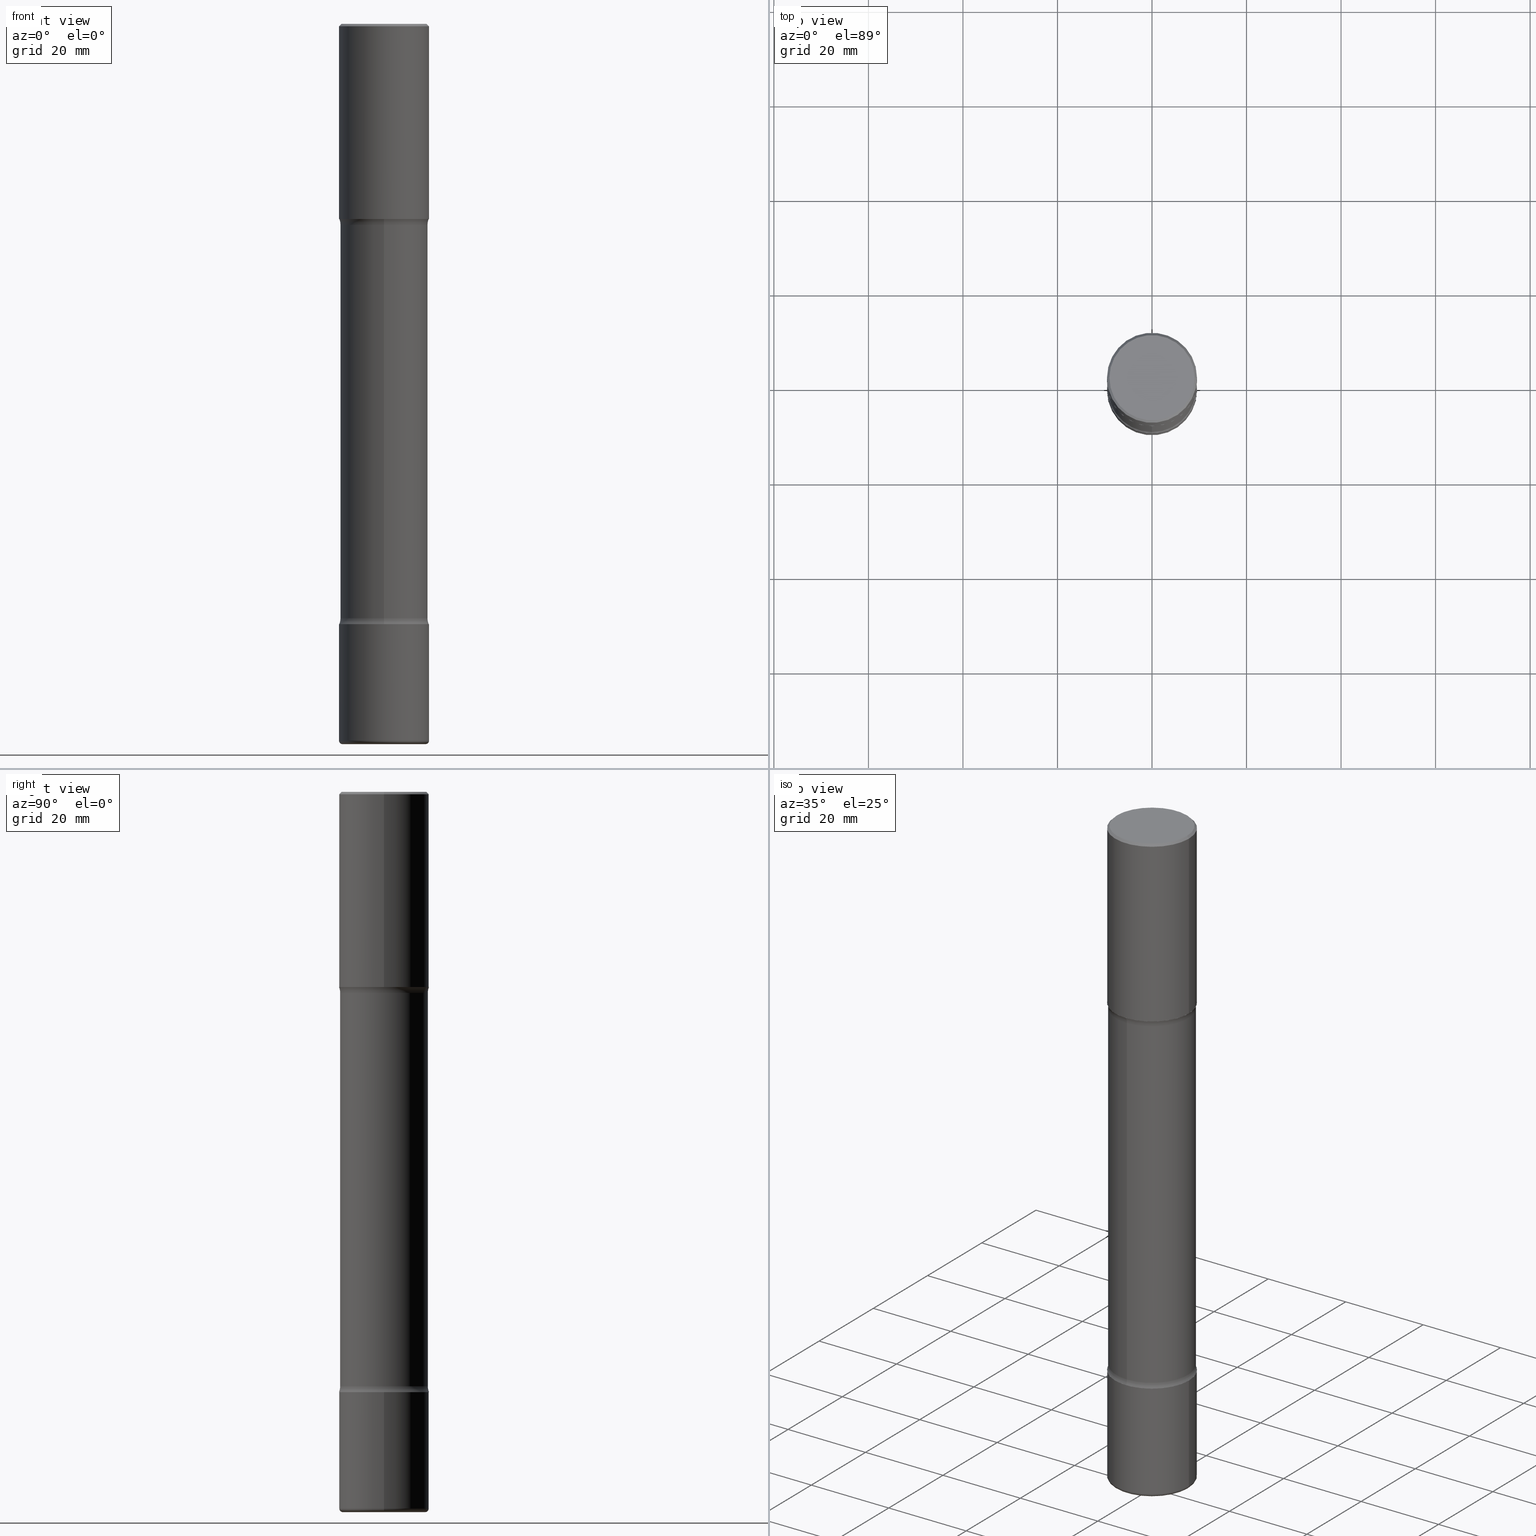
[diagram: canonical four-view strip — front | top / right | iso, engineering-drawing reading convention]
A machine part, canonical four-view strip (front | top / right | iso — engineering-drawing reading convention). The complete STEP part file that produces these views, byte-faithful:
ISO-10303-21;
HEADER;
FILE_DESCRIPTION (( 'STEP AP203' ),
    '1' );
FILE_NAME ('33522.STEP',
    '2024-03-01T22:44:41',
    ( '' ),
    ( '' ),
    'SwSTEP 2.0',
    'SolidWorks 2023',
    '' );
FILE_SCHEMA (( 'CONFIG_CONTROL_DESIGN' ));
ENDSEC;

DATA;
#1 = CARTESIAN_POINT ( 'NONE',  ( 3.473707066313519863E-29, -6.732554728093303521E-15, -1.673989794855664570 ) ) ;
#2 = EDGE_CURVE ( 'NONE', #208, #10, #236, .T. ) ;
#3 = DIRECTION ( 'NONE',  ( 1.000000000000000000, -6.982962677686215435E-15, 0.000000000000000000 ) ) ;
#4 = EDGE_LOOP ( 'NONE', ( #105, #232, #440, #539 ) ) ;
#5 = ORIENTED_EDGE ( 'NONE', *, *, #60, .T. ) ;
#6 = CIRCLE ( 'NONE', #134, 0.3750000000000011102 ) ;
#7 = DIRECTION ( 'NONE',  ( -2.445468806185136597E-29, 3.491481338843145583E-15, 1.000000000000000000 ) ) ;
#8 = APPROVAL_PERSON_ORGANIZATION ( #186, #35, #272 ) ;
#9 = CARTESIAN_POINT ( 'NONE',  ( 1.210754101578474788E-28, -1.728635973968342417E-14, -4.951010205144336318 ) ) ;
#10 = VERTEX_POINT ( 'NONE', #395 ) ;
#11 = ADVANCED_FACE ( 'NONE', ( #13 ), #453, .F. ) ;
#12 = APPLICATION_PROTOCOL_DEFINITION ( 'international standard', 'config_control_design', 1994, #328 ) ;
#13 = FACE_OUTER_BOUND ( 'NONE', #483, .T. ) ;
#14 = CARTESIAN_POINT ( 'NONE',  ( -2.572686749164297515E-15, -0.3750000000000077716, -1.624999999999998668 ) ) ;
#15 = DIRECTION ( 'NONE',  ( 6.982962677686265922E-15, 1.000000000000000000, -2.913971193241872089E-15 ) ) ;
#16 = TOROIDAL_SURFACE ( 'NONE', #436, 0.3450000000000001954, 0.03000000000000022787 ) ;
#17 = AXIS2_PLACEMENT_3D ( 'NONE', #535, #55, #146 ) ;
#18 = ORIENTED_EDGE ( 'NONE', *, *, #451, .T. ) ;
#19 = ORIENTED_EDGE ( 'NONE', *, *, #460, .T. ) ;
#20 = CARTESIAN_POINT ( 'NONE',  ( 1.210754101578474788E-28, -1.728635973968342417E-14, -4.951010205144336318 ) ) ;
#21 = EDGE_CURVE ( 'NONE', #446, #10, #368, .T. ) ;
#22 = DIRECTION ( 'NONE',  ( -2.445468806185136597E-29, 3.491481338843145583E-15, 1.000000000000000000 ) ) ;
#23 = ADVANCED_FACE ( 'NONE', ( #187 ), #445, .T. ) ;
#24 = DIRECTION ( 'NONE',  ( 1.000000000000000000, -6.982962677686265133E-15, 4.883557194083112340E-29 ) ) ;
#25 = ORIENTED_EDGE ( 'NONE', *, *, #45, .T. ) ;
#26 = AXIS2_PLACEMENT_3D ( 'NONE', #415, #72, #245 ) ;
#27 = AXIS2_PLACEMENT_3D ( 'NONE', #441, #355, #523 ) ;
#28 = CARTESIAN_POINT ( 'NONE',  ( 0.000000000000000000, 0.000000000000000000, 0.000000000000000000 ) ) ;
#29 = EDGE_CURVE ( 'NONE', #267, #145, #148, .T. ) ;
#30 = DIRECTION ( 'NONE',  ( 1.000000000000000000, -6.982962677686266711E-15, 0.000000000000000000 ) ) ;
#31 = CLOSED_SHELL ( 'NONE', ( #23, #351, #122, #513, #549, #166 ) ) ;
#32 = ORIENTED_EDGE ( 'NONE', *, *, #91, .T. ) ;
#33 = CIRCLE ( 'NONE', #344, 0.3650000000000004907 ) ;
#34 = CIRCLE ( 'NONE', #412, 0.1250000000000001110 ) ;
#35 = APPROVAL ( #530, 'UNSPECIFIED' ) ;
#36 = CARTESIAN_POINT ( 'NONE',  ( 1.459944877292526494E-28, -2.084414359289357934E-14, -5.969999999999999751 ) ) ;
#37 = VERTEX_POINT ( 'NONE', #363 ) ;
#38 = DIRECTION ( 'NONE',  ( -2.636232731993832402E-29, 3.218296539476719458E-15, 1.000000000000000000 ) ) ;
#39 = ORGANIZATION ( 'UNSPECIFIED', 'UNSPECIFIED', '' ) ;
#40 = CARTESIAN_POINT ( 'NONE',  ( -0.3750000000000002220, 2.664535259100377275E-15, -1.844600658845590719E-29 ) ) ;
#41 = ORIENTED_EDGE ( 'NONE', *, *, #2, .T. ) ;
#42 = LINE ( 'NONE', #79, #338 ) ;
#43 = EDGE_LOOP ( 'NONE', ( #480, #234 ) ) ;
#44 = DIRECTION ( 'NONE',  ( 6.982962677686265922E-15, 1.000000000000000000, -2.993806020453985462E-15 ) ) ;
#45 = EDGE_CURVE ( 'NONE', #286, #310, #140, .T. ) ;
#46 = CIRCLE ( 'NONE', #126, 0.3750000000000007772 ) ;
#47 = CARTESIAN_POINT ( 'NONE',  ( 0.000000000000000000, 0.000000000000000000, 0.000000000000000000 ) ) ;
#48 = AXIS2_PLACEMENT_3D ( 'NONE', #471, #517, #170 ) ;
#49 = ORIENTED_EDGE ( 'NONE', *, *, #269, .F. ) ;
#50 =( CONVERSION_BASED_UNIT ( 'INCH', #309 ) LENGTH_UNIT ( ) NAMED_UNIT ( #519 ) );
#51 = DIRECTION ( 'NONE',  ( 2.636232731993832963E-29, -3.218296539476719458E-15, -1.000000000000000000 ) ) ;
#52 = ORIENTED_EDGE ( 'NONE', *, *, #425, .F. ) ;
#53 = CYLINDRICAL_SURFACE ( 'NONE', #521, 0.3650000000000002132 ) ;
#54 = EDGE_LOOP ( 'NONE', ( #302, #538 ) ) ;
#55 = DIRECTION ( 'NONE',  ( -2.445468806185136597E-29, 3.491481338843145583E-15, 1.000000000000000000 ) ) ;
#56 = DIRECTION ( 'NONE',  ( -1.000000000000000000, 6.982962677686266711E-15, 0.000000000000000000 ) ) ;
#57 = EDGE_LOOP ( 'NONE', ( #212, #5, #185, #158 ) ) ;
#58 = AXIS2_PLACEMENT_3D ( 'NONE', #553, #67, #295 ) ;
#59 = AXIS2_PLACEMENT_3D ( 'NONE', #36, #555, #87 ) ;
#60 = EDGE_CURVE ( 'NONE', #316, #250, #191, .T. ) ;
#61 = ORIENTED_EDGE ( 'NONE', *, *, #312, .F. ) ;
#62 = APPROVAL_ROLE ( '' ) ;
#63 = FACE_OUTER_BOUND ( 'NONE', #509, .T. ) ;
#64 = PERSON_AND_ORGANIZATION_ROLE ( 'design_supplier' ) ;
#65 = FACE_OUTER_BOUND ( 'NONE', #401, .T. ) ;
#66 = EDGE_CURVE ( 'NONE', #310, #463, #348, .T. ) ;
#67 = DIRECTION ( 'NONE',  ( -2.445468806185136597E-29, 3.491481338843145583E-15, 1.000000000000000000 ) ) ;
#68 = CIRCLE ( 'NONE', #410, 0.3649999999999999356 ) ;
#69 = DATE_AND_TIME ( #486, #437 ) ;
#70 = FACE_OUTER_BOUND ( 'NONE', #214, .T. ) ;
#71 = APPROVAL_DATE_TIME ( #278, #188 ) ;
#72 = DIRECTION ( 'NONE',  ( -1.000000000000000000, 6.982962677686265922E-15, -4.883557194083112340E-29 ) ) ;
#73 = EDGE_LOOP ( 'NONE', ( #92, #120, #493, #406 ) ) ;
#74 = DIRECTION ( 'NONE',  ( 2.636232731993832963E-29, -3.218296539476719458E-15, -1.000000000000000000 ) ) ;
#75 = ORIENTED_EDGE ( 'NONE', *, *, #451, .F. ) ;
#76 = AXIS2_PLACEMENT_3D ( 'NONE', #28, #452, #205 ) ;
#77 = CIRCLE ( 'NONE', #59, 0.3750000000000001665 ) ;
#78 = PRODUCT_DEFINITION_SHAPE ( 'NONE', 'NONE',  #431 ) ;
#79 = CARTESIAN_POINT ( 'NONE',  ( 0.3750000000000008327, -2.618611004132355933E-15, 1.828566290923479846E-29 ) ) ;
#80 = DIRECTION ( 'NONE',  ( -2.445468806185136597E-29, 3.491481338843145583E-15, 1.000000000000000000 ) ) ;
#81 = PLANE ( 'NONE',  #448 ) ;
#82 = PRODUCT_RELATED_PRODUCT_CATEGORY ( 'detail', '', ( #467 ) ) ;
#83 = EDGE_CURVE ( 'NONE', #544, #446, #117, .T. ) ;
#84 = AXIS2_PLACEMENT_3D ( 'NONE', #20, #151, #90 ) ;
#85 = EDGE_LOOP ( 'NONE', ( #75, #61, #275, #527 ) ) ;
#86 = CIRCLE ( 'NONE', #246, 0.1249999999999999584 ) ;
#87 = DIRECTION ( 'NONE',  ( 1.000000000000000000, -6.982962677686269866E-15, 0.000000000000000000 ) ) ;
#88 = EDGE_LOOP ( 'NONE', ( #554, #268, #370, #550 ) ) ;
#89 = ORIENTED_EDGE ( 'NONE', *, *, #520, .F. ) ;
#90 = DIRECTION ( 'NONE',  ( 6.982962677686265922E-15, 1.000000000000000000, -3.218296539476719458E-15 ) ) ;
#91 = EDGE_CURVE ( 'NONE', #534, #319, #6, .T. ) ;
#92 = ORIENTED_EDGE ( 'NONE', *, *, #29, .F. ) ;
#93 = DIRECTION ( 'NONE',  ( 1.000000000000000000, 0.000000000000000000, 0.000000000000000000 ) ) ;
#94 = CARTESIAN_POINT ( 'NONE',  ( 1.222734403092568523E-28, -1.745740669421572989E-14, -5.000000000000000000 ) ) ;
#95 = ORIENTED_EDGE ( 'NONE', *, *, #425, .T. ) ;
#96 = CARTESIAN_POINT ( 'NONE',  ( 3.973886810050846409E-29, -5.673657175620110635E-15, -1.624999999999999778 ) ) ;
#97 = CIRCLE ( 'NONE', #244, 0.3650000000000004907 ) ;
#98 = AXIS2_PLACEMENT_3D ( 'NONE', #154, #416, #459 ) ;
#99 = CARTESIAN_POINT ( 'NONE',  ( -2.572686749164203246E-15, -0.3750000000000175970, -4.999999999999999112 ) ) ;
#100 = CIRCLE ( 'NONE', #522, 0.3750000000000002220 ) ;
#101 = CARTESIAN_POINT ( 'NONE',  ( 4.890937612370273159E-31, -6.982962677686291609E-17, -0.02000000000000000042 ) ) ;
#102 = ORIENTED_EDGE ( 'NONE', *, *, #326, .T. ) ;
#103 = DIRECTION ( 'NONE',  ( -2.445468806185136597E-29, 3.491481338843145583E-15, 1.000000000000000000 ) ) ;
#104 = EDGE_CURVE ( 'NONE', #463, #310, #357, .T. ) ;
#105 = ORIENTED_EDGE ( 'NONE', *, *, #468, .F. ) ;
#106 = CALENDAR_DATE ( 2024, 1, 3 ) ;
#107 = CARTESIAN_POINT ( 'NONE',  ( 3.973886810050846409E-29, -5.673657175620110635E-15, -1.624999999999999778 ) ) ;
#108 = ORIENTED_EDGE ( 'NONE', *, *, #460, .F. ) ;
#109 = CIRCLE ( 'NONE', #58, 0.3450000000000003064 ) ;
#110 = LOCAL_TIME ( 17, 44, 41.00000000000000000, #115 ) ;
#111 = CARTESIAN_POINT ( 'NONE',  ( 4.890937612370273159E-31, -6.982962677686291609E-17, -0.02000000000000000042 ) ) ;
#112 = ADVANCED_FACE ( 'NONE', ( #350 ), #318, .F. ) ;
#113 = CALENDAR_DATE ( 2024, 1, 3 ) ;
#114 = DIRECTION ( 'NONE',  ( 6.982962677686265922E-15, 1.000000000000000000, -2.993806020453987435E-15 ) ) ;
#115 = COORDINATED_UNIVERSAL_TIME_OFFSET ( 5, 0, .BEHIND. ) ;
#116 = DIRECTION ( 'NONE',  ( 2.636232731993832963E-29, -3.218296539476719458E-15, -1.000000000000000000 ) ) ;
#117 = CIRCLE ( 'NONE', #428, 0.1250000000000001110 ) ;
#118 = SECURITY_CLASSIFICATION ( '', '', #324 ) ;
#119 = PERSON_AND_ORGANIZATION ( #524, #39 ) ;
#120 = ORIENTED_EDGE ( 'NONE', *, *, #125, .F. ) ;
#121 = DIRECTION ( 'NONE',  ( 6.982962677686266711E-15, 1.000000000000000000, -2.913971193241879189E-15 ) ) ;
#122 = ADVANCED_FACE ( 'NONE', ( #479 ), #551, .T. ) ;
#123 = VERTEX_POINT ( 'NONE', #99 ) ;
#124 = DIRECTION ( 'NONE',  ( -1.000000000000000000, 6.982962677686266711E-15, 0.000000000000000000 ) ) ;
#125 = EDGE_CURVE ( 'NONE', #153, #267, #252, .T. ) ;
#126 = AXIS2_PLACEMENT_3D ( 'NONE', #456, #507, #30 ) ;
#127 = APPROVAL_PERSON_ORGANIZATION ( #119, #485, #62 ) ;
#128 = LINE ( 'NONE', #304, #142 ) ;
#129 = MANIFOLD_SOLID_BREP ( 'Body-Move/Copy2[2]', #31 ) ;
#130 = ADVANCED_FACE ( 'NONE', ( #435 ), #218, .F. ) ;
#131 = CARTESIAN_POINT ( 'NONE',  ( 1.467281283711081958E-28, -2.094888803305887271E-14, -6.000000000000000888 ) ) ;
#132 = ADVANCED_FACE ( 'NONE', ( #266 ), #53, .T. ) ;
#133 = DIRECTION ( 'NONE',  ( 6.982962677686266711E-15, 1.000000000000000000, -2.993806020453983096E-15 ) ) ;
#134 = AXIS2_PLACEMENT_3D ( 'NONE', #405, #51, #15 ) ;
#135 = CIRCLE ( 'NONE', #558, 0.3750000000000002220 ) ;
#136 = CYLINDRICAL_SURFACE ( 'NONE', #482, 0.3650000000000002132 ) ;
#137 = EDGE_CURVE ( 'NONE', #10, #446, #68, .T. ) ;
#138 = DIRECTION ( 'NONE',  ( 1.000000000000000000, -6.982962677686266711E-15, 4.876176775795935793E-29 ) ) ;
#139 = CARTESIAN_POINT ( 'NONE',  ( 0.3750000000000002220, -2.618611004132351594E-15, 1.828566290923477043E-29 ) ) ;
#140 = LINE ( 'NONE', #139, #503 ) ;
#141 = COORDINATED_UNIVERSAL_TIME_OFFSET ( 5, 0, .BEHIND. ) ;
#142 = VECTOR ( 'NONE', #380, 39.37007874015748143 ) ;
#143 =( GEOMETRIC_REPRESENTATION_CONTEXT ( 3 ) GLOBAL_UNCERTAINTY_ASSIGNED_CONTEXT ( ( #265 ) ) GLOBAL_UNIT_ASSIGNED_CONTEXT ( ( #50, #235, #474 ) ) REPRESENTATION_CONTEXT ( 'NONE', 'WORKASPACE' ) );
#144 = DIRECTION ( 'NONE',  ( -6.982962677686264344E-15, -1.000000000000000000, 0.000000000000000000 ) ) ;
#145 = VERTEX_POINT ( 'NONE', #450 ) ;
#146 = DIRECTION ( 'NONE',  ( 1.000000000000000000, -6.982962677686265922E-15, 0.000000000000000000 ) ) ;
#147 = EDGE_CURVE ( 'NONE', #208, #206, #33, .T. ) ;
#148 = LINE ( 'NONE', #526, #162 ) ;
#149 = VERTEX_POINT ( 'NONE', #501 ) ;
#150 = COORDINATED_UNIVERSAL_TIME_OFFSET ( 5, 0, .BEHIND. ) ;
#151 = DIRECTION ( 'NONE',  ( 2.636232731993832963E-29, -3.218296539476719458E-15, -1.000000000000000000 ) ) ;
#152 = DATE_AND_TIME ( #540, #110 ) ;
#153 = VERTEX_POINT ( 'NONE', #407 ) ;
#154 = CARTESIAN_POINT ( 'NONE',  ( 1.467281283711081958E-28, -2.094888803305887271E-14, -6.000000000000000888 ) ) ;
#155 = CIRCLE ( 'NONE', #496, 0.3550000000000008149 ) ;
#156 = ADVANCED_FACE ( 'NONE', ( #209 ), #16, .T. ) ;
#157 = DIRECTION ( 'NONE',  ( -2.445468806185136597E-29, 3.491481338843145583E-15, 1.000000000000000000 ) ) ;
#158 = ORIENTED_EDGE ( 'NONE', *, *, #326, .F. ) ;
#159 = APPROVAL_STATUS ( 'not_yet_approved' ) ;
#160 = DIRECTION ( 'NONE',  ( -2.445468806185136597E-29, 3.491481338843145583E-15, 1.000000000000000000 ) ) ;
#161 = CARTESIAN_POINT ( 'NONE',  ( 0.3550000000000008149, -2.538996582575045781E-15, 4.268512490117958041E-18 ) ) ;
#162 = VECTOR ( 'NONE', #391, 39.37007874015748143 ) ;
#163 = CONICAL_SURFACE ( 'NONE', #533, 0.3750000000000007772, 0.7853981633974479459 ) ;
#164 = ORIENTED_EDGE ( 'NONE', *, *, #60, .F. ) ;
#165 = ORIENTED_EDGE ( 'NONE', *, *, #147, .T. ) ;
#166 = ADVANCED_FACE ( 'NONE', ( #70 ), #248, .T. ) ;
#167 = FACE_OUTER_BOUND ( 'NONE', #221, .T. ) ;
#168 = ORIENTED_EDGE ( 'NONE', *, *, #147, .F. ) ;
#169 = DIRECTION ( 'NONE',  ( -2.445468806185136597E-29, 3.491481338843145583E-15, 1.000000000000000000 ) ) ;
#170 = DIRECTION ( 'NONE',  ( 6.982962677686265922E-15, 1.000000000000000000, -3.218296539476719458E-15 ) ) ;
#171 = EDGE_CURVE ( 'NONE', #316, #37, #109, .T. ) ;
#172 = AXIS2_PLACEMENT_3D ( 'NONE', #314, #399, #195 ) ;
#173 = VECTOR ( 'NONE', #559, 39.37007874015748143 ) ;
#174 = CARTESIAN_POINT ( 'NONE',  ( -0.3750000000000002220, -1.648623988445427734E-14, -5.000000000000000000 ) ) ;
#175 = CARTESIAN_POINT ( 'NONE',  ( 3.973886810050846409E-29, -5.673657175620110635E-15, -1.624999999999999778 ) ) ;
#176 = FACE_OUTER_BOUND ( 'NONE', #320, .T. ) ;
#177 = APPLICATION_CONTEXT ( 'configuration controlled 3d designs of mechanical parts and assemblies' ) ;
#178 = CIRCLE ( 'NONE', #26, 0.1249999999999999584 ) ;
#179 = DIRECTION ( 'NONE',  ( 1.000000000000000000, -6.860497997771530774E-15, 4.844144428525341329E-29 ) ) ;
#180 = DIRECTION ( 'NONE',  ( -2.445468806185136877E-29, 3.491481338843145188E-15, 1.000000000000000000 ) ) ;
#181 = ORIENTED_EDGE ( 'NONE', *, *, #192, .F. ) ;
#182 = DIRECTION ( 'NONE',  ( -2.438088387897960049E-29, 3.491481338843145188E-15, 1.000000000000000000 ) ) ;
#183 = DIRECTION ( 'NONE',  ( 6.982962677686265922E-15, 1.000000000000000000, -3.218296539476719458E-15 ) ) ;
#184 = ORIENTED_EDGE ( 'NONE', *, *, #91, .F. ) ;
#185 = ORIENTED_EDGE ( 'NONE', *, *, #371, .F. ) ;
#186 = PERSON_AND_ORGANIZATION ( #524, #39 ) ;
#187 = FACE_OUTER_BOUND ( 'NONE', #263, .T. ) ;
#188 = APPROVAL ( #159, 'UNSPECIFIED' ) ;
#189 = CLOSED_SHELL ( 'NONE', ( #198, #156, #254, #216, #556, #112 ) ) ;
#190 = CARTESIAN_POINT ( 'NONE',  ( 2.618611004132472684E-15, 0.3749999999999826805, -5.000000000000000888 ) ) ;
#191 = CIRCLE ( 'NONE', #225, 0.03000000000000022787 ) ;
#192 = EDGE_CURVE ( 'NONE', #206, #319, #178, .T. ) ;
#193 = DIRECTION ( 'NONE',  ( 1.000000000000000000, -6.982962677686263555E-15, 0.000000000000000000 ) ) ;
#194 = DATE_AND_TIME ( #113, #473 ) ;
#195 = DIRECTION ( 'NONE',  ( 6.982962677686265922E-15, 1.000000000000000000, -2.993806020453987435E-15 ) ) ;
#196 = ORIENTED_EDGE ( 'NONE', *, *, #2, .F. ) ;
#197 = PERSON_AND_ORGANIZATION ( #524, #39 ) ;
#198 = ADVANCED_FACE ( 'NONE', ( #167 ), #413, .T. ) ;
#199 = DIRECTION ( 'NONE',  ( 1.000000000000000000, -6.982962677686266711E-15, 0.000000000000000000 ) ) ;
#200 = ADVANCED_BREP_SHAPE_REPRESENTATION ( '33522', ( #502, #129, #313, #259 ), #143 ) ;
#201 = APPROVAL_STATUS ( 'not_yet_approved' ) ;
#202 = CARTESIAN_POINT ( 'NONE',  ( 3.330058560446495684E-29, -6.595655873481799644E-15, -1.624999999999999778 ) ) ;
#203 = TOROIDAL_SURFACE ( 'NONE', #514, 0.4900000000000004907, 0.1249999999999999861 ) ;
#204 = CC_DESIGN_APPROVAL ( #188, ( #118 ) ) ;
#205 = DIRECTION ( 'NONE',  ( 1.000000000000000000, -6.982962677686266711E-15, 4.876176775795935793E-29 ) ) ;
#206 = VERTEX_POINT ( 'NONE', #546 ) ;
#207 = CARTESIAN_POINT ( 'NONE',  ( 1.459944877292526494E-28, -2.084414359289357934E-14, -5.969999999999999751 ) ) ;
#208 = VERTEX_POINT ( 'NONE', #241 ) ;
#209 = FACE_OUTER_BOUND ( 'NONE', #57, .T. ) ;
#210 = AXIS2_PLACEMENT_3D ( 'NONE', #537, #273, #238 ) ;
#211 = VECTOR ( 'NONE', #220, 39.37007874015748143 ) ;
#212 = ORIENTED_EDGE ( 'NONE', *, *, #389, .T. ) ;
#213 = DIRECTION ( 'NONE',  ( 1.000000000000000000, -6.860497997771530774E-15, 4.844144428525341329E-29 ) ) ;
#214 = EDGE_LOOP ( 'NONE', ( #457, #418, #299, #484 ) ) ;
#215 = CARTESIAN_POINT ( 'NONE',  ( -0.3450000000000003064, -1.833856196423986308E-14, -6.000000000000000888 ) ) ;
#216 = ADVANCED_FACE ( 'NONE', ( #63 ), #481, .T. ) ;
#217 = LINE ( 'NONE', #40, #211 ) ;
#218 = TOROIDAL_SURFACE ( 'NONE', #84, 0.4900000000000001021, 0.1250000000000000555 ) ;
#219 = CARTESIAN_POINT ( 'NONE',  ( 1.459944877292526494E-28, -2.084414359289357934E-14, -5.969999999999999751 ) ) ;
#220 = DIRECTION ( 'NONE',  ( -2.445468806185136877E-29, 3.491481338843145188E-15, 1.000000000000000000 ) ) ;
#221 = EDGE_LOOP ( 'NONE', ( #226, #95, #388, #529 ) ) ;
#222 = CC_DESIGN_PERSON_AND_ORGANIZATION_ASSIGNMENT ( #365, #497, ( #118 ) ) ;
#223 = CARTESIAN_POINT ( 'NONE',  ( 0.000000000000000000, 0.000000000000000000, 0.000000000000000000 ) ) ;
#224 = CARTESIAN_POINT ( 'NONE',  ( 1.209819553019351831E-28, -1.729974300696207142E-14, -4.951010205144336318 ) ) ;
#225 = AXIS2_PLACEMENT_3D ( 'NONE', #439, #271, #356 ) ;
#226 = ORIENTED_EDGE ( 'NONE', *, *, #371, .T. ) ;
#227 = AXIS2_PLACEMENT_3D ( 'NONE', #96, #182, #270 ) ;
#228 = CYLINDRICAL_SURFACE ( 'NONE', #293, 0.3750000000000002220 ) ;
#229 = DIRECTION ( 'NONE',  ( 1.000000000000000000, -6.982962677686263555E-15, 0.000000000000000000 ) ) ;
#230 = DIRECTION ( 'NONE',  ( 6.860497997771527618E-15, 1.000000000000000000, 0.000000000000000000 ) ) ;
#231 = DIRECTION ( 'NONE',  ( 1.000000000000000000, -6.982962677686266711E-15, 4.876176775795935232E-29 ) ) ;
#232 = ORIENTED_EDGE ( 'NONE', *, *, #29, .T. ) ;
#233 = EDGE_CURVE ( 'NONE', #364, #145, #329, .T. ) ;
#234 = ORIENTED_EDGE ( 'NONE', *, *, #494, .T. ) ;
#235 =( NAMED_UNIT ( * ) PLANE_ANGLE_UNIT ( ) SI_UNIT ( $, .RADIAN. ) );
#236 = LINE ( 'NONE', #397, #375 ) ;
#237 = DIRECTION ( 'NONE',  ( 2.636232731993832963E-29, -3.218296539476719458E-15, -1.000000000000000000 ) ) ;
#238 = DIRECTION ( 'NONE',  ( 1.000000000000000000, -6.982962677686265922E-15, 4.876231632511976973E-29 ) ) ;
#239 = ORIENTED_EDGE ( 'NONE', *, *, #312, .T. ) ;
#240 = ADVANCED_FACE ( 'NONE', ( #376 ), #409, .F. ) ;
#241 = CARTESIAN_POINT ( 'NONE',  ( -2.538384259175437285E-15, -0.3650000000000072631, -1.673989794855663460 ) ) ;
#242 = CARTESIAN_POINT ( 'NONE',  ( -0.3750000000000002776, -1.817960833379319733E-14, -5.969999999999999751 ) ) ;
#243 = ORIENTED_EDGE ( 'NONE', *, *, #298, .F. ) ;
#244 = AXIS2_PLACEMENT_3D ( 'NONE', #387, #469, #133 ) ;
#245 = DIRECTION ( 'NONE',  ( -6.982962677686265133E-15, -1.000000000000000000, 0.000000000000000000 ) ) ;
#246 = AXIS2_PLACEMENT_3D ( 'NONE', #251, #213, #379 ) ;
#247 = DATE_TIME_ROLE ( 'classification_date' ) ;
#248 = CYLINDRICAL_SURFACE ( 'NONE', #420, 0.3750000000000008327 ) ;
#249 = DIRECTION ( 'NONE',  ( 2.636232731993832402E-29, -3.218296539476719458E-15, -1.000000000000000000 ) ) ;
#250 = VERTEX_POINT ( 'NONE', #242 ) ;
#251 = CARTESIAN_POINT ( 'NONE',  ( -3.361644018908018501E-15, -0.4900000000000072631, -1.673989794855663016 ) ) ;
#252 = CIRCLE ( 'NONE', #210, 0.3550000000000008149 ) ;
#253 = ORIENTED_EDGE ( 'NONE', *, *, #171, .F. ) ;
#254 = ADVANCED_FACE ( 'NONE', ( #65 ), #542, .T. ) ;
#255 = CARTESIAN_POINT ( 'NONE',  ( 2.618611004132391432E-15, 0.3749999999999945044, -1.625000000000000888 ) ) ;
#256 = FACE_OUTER_BOUND ( 'NONE', #4, .T. ) ;
#257 = DIRECTION ( 'NONE',  ( -6.982962677686265922E-15, -1.000000000000000000, 3.218296539476719458E-15 ) ) ;
#258 = AXIS2_PLACEMENT_3D ( 'NONE', #323, #7, #193 ) ;
#259 = AXIS2_PLACEMENT_3D ( 'NONE', #223, #475, #93 ) ;
#260 = DIRECTION ( 'NONE',  ( -2.445468806185136597E-29, 3.491481338843145583E-15, 1.000000000000000000 ) ) ;
#261 = CC_DESIGN_PERSON_AND_ORGANIZATION_ASSIGNMENT ( #396, #274, ( #467 ) ) ;
#262 = PLANE ( 'NONE',  #27 ) ;
#263 = EDGE_LOOP ( 'NONE', ( #422, #455, #243, #339 ) ) ;
#264 = CARTESIAN_POINT ( 'NONE',  ( 1.486357676291951651E-28, -2.067570323369244855E-14, -6.000000000000000888 ) ) ;
#265 = UNCERTAINTY_MEASURE_WITH_UNIT (LENGTH_MEASURE( 1.000000000000000082E-05 ), #50, 'distance_accuracy_value', 'NONE');
#266 = FACE_OUTER_BOUND ( 'NONE', #426, .T. ) ;
#267 = VERTEX_POINT ( 'NONE', #161 ) ;
#268 = ORIENTED_EDGE ( 'NONE', *, *, #520, .T. ) ;
#269 = EDGE_CURVE ( 'NONE', #319, #534, #543, .T. ) ;
#270 = DIRECTION ( 'NONE',  ( 1.000000000000000000, -6.982962677686265922E-15, 4.876176775795935793E-29 ) ) ;
#271 = DIRECTION ( 'NONE',  ( 7.105427357601001859E-15, 1.000000000000000000, -3.491481338843145583E-15 ) ) ;
#272 = APPROVAL_ROLE ( '' ) ;
#273 = DIRECTION ( 'NONE',  ( -2.445468806185136597E-29, 3.491481338843145583E-15, 1.000000000000000000 ) ) ;
#274 = PERSON_AND_ORGANIZATION_ROLE ( 'design_owner' ) ;
#275 = ORIENTED_EDGE ( 'NONE', *, *, #192, .T. ) ;
#276 = DIRECTION ( 'NONE',  ( 2.445468806185136597E-29, -3.491481338843145583E-15, -1.000000000000000000 ) ) ;
#277 = VERTEX_POINT ( 'NONE', #331 ) ;
#278 = DATE_AND_TIME ( #106, #552 ) ;
#279 = AXIS2_PLACEMENT_3D ( 'NONE', #311, #103, #229 ) ;
#280 = CIRCLE ( 'NONE', #393, 0.3750000000000001665 ) ;
#281 = DIRECTION ( 'NONE',  ( 2.636232731993832963E-29, -3.218296539476719458E-15, -1.000000000000000000 ) ) ;
#282 = ORIENTED_EDGE ( 'NONE', *, *, #83, .T. ) ;
#283 = EDGE_CURVE ( 'NONE', #153, #364, #332, .T. ) ;
#284 = ORIENTED_EDGE ( 'NONE', *, *, #21, .F. ) ;
#285 = DIRECTION ( 'NONE',  ( -2.445468806185136597E-29, 3.491481338843145583E-15, 1.000000000000000000 ) ) ;
#286 = VERTEX_POINT ( 'NONE', #292 ) ;
#287 = CARTESIAN_POINT ( 'NONE',  ( 3.459207061178662599E-29, -6.753319560735459691E-15, -1.673989794855664570 ) ) ;
#288 = PERSON_AND_ORGANIZATION ( #524, #39 ) ;
#289 = ORIENTED_EDGE ( 'NONE', *, *, #137, .F. ) ;
#290 = CC_DESIGN_DATE_AND_TIME_ASSIGNMENT ( #152, #247, ( #118 ) ) ;
#291 = AXIS2_PLACEMENT_3D ( 'NONE', #175, #80, #465 ) ;
#292 = CARTESIAN_POINT ( 'NONE',  ( 0.3750000000000002776, -2.346275459702592935E-14, -5.969999999999999751 ) ) ;
#293 = AXIS2_PLACEMENT_3D ( 'NONE', #438, #347, #138 ) ;
#294 = CALENDAR_DATE ( 2024, 1, 3 ) ;
#295 = DIRECTION ( 'NONE',  ( 1.000000000000000000, -6.982962677686267499E-15, 0.000000000000000000 ) ) ;
#296 = EDGE_LOOP ( 'NONE', ( #419, #374 ) ) ;
#297 = DIRECTION ( 'NONE',  ( -2.445468806185136877E-29, 3.491481338843145188E-15, 1.000000000000000000 ) ) ;
#298 = EDGE_CURVE ( 'NONE', #145, #364, #46, .T. ) ;
#299 = ORIENTED_EDGE ( 'NONE', *, *, #378, .T. ) ;
#300 = DIRECTION ( 'NONE',  ( -2.445468806185136597E-29, 3.491481338843145583E-15, 1.000000000000000000 ) ) ;
#301 = VECTOR ( 'NONE', #337, 39.37007874015748143 ) ;
#302 = ORIENTED_EDGE ( 'NONE', *, *, #125, .T. ) ;
#303 = ORIENTED_EDGE ( 'NONE', *, *, #171, .T. ) ;
#304 = CARTESIAN_POINT ( 'NONE',  ( -0.3750000000000008327, 2.664535259100381613E-15, -1.844600658845593802E-29 ) ) ;
#305 = CARTESIAN_POINT ( 'NONE',  ( 1.222734403092568523E-28, -1.745740669421572989E-14, -5.000000000000000000 ) ) ;
#306 = CARTESIAN_POINT ( 'NONE',  ( -0.3750000000000007772, 2.548781377355492635E-15, -0.02000000000000000042 ) ) ;
#307 = ADVANCED_FACE ( 'NONE', ( #492 ), #203, .F. ) ;
#308 = AXIS2_PLACEMENT_3D ( 'NONE', #101, #276, #56 ) ;
#309 = LENGTH_MEASURE_WITH_UNIT ( LENGTH_MEASURE( 0.02539999999999999897 ), #390 );
#310 = VERTEX_POINT ( 'NONE', #516 ) ;
#311 = CARTESIAN_POINT ( 'NONE',  ( 1.222734403092568523E-28, -1.745740669421572989E-14, -5.000000000000000000 ) ) ;
#312 = EDGE_CURVE ( 'NONE', #206, #208, #97, .T. ) ;
#313 = MANIFOLD_SOLID_BREP ( 'Body-Move/Copy2[4]', #478 ) ;
#314 = CARTESIAN_POINT ( 'NONE',  ( 1.209819553019351831E-28, -1.729974300696207142E-14, -4.951010205144336318 ) ) ;
#315 = CIRCLE ( 'NONE', #382, 0.03000000000000022787 ) ;
#316 = VERTEX_POINT ( 'NONE', #215 ) ;
#317 = CC_DESIGN_APPROVAL ( #35, ( #431 ) ) ;
#318 = PLANE ( 'NONE',  #472 ) ;
#319 = VERTEX_POINT ( 'NONE', #255 ) ;
#320 = EDGE_LOOP ( 'NONE', ( #52, #488, #25, #489 ) ) ;
#321 = DESIGN_CONTEXT ( 'detailed design', #328, 'design' ) ;
#322 = PLANE ( 'NONE',  #227 ) ;
#323 = CARTESIAN_POINT ( 'NONE',  ( 1.222734403092568523E-28, -1.745740669421572989E-14, -5.000000000000000000 ) ) ;
#324 = SECURITY_CLASSIFICATION_LEVEL ( 'unclassified' ) ;
#325 = CARTESIAN_POINT ( 'NONE',  ( 3.421651712066391936E-15, 0.4899999999999828382, -4.951010205144337206 ) ) ;
#326 = EDGE_CURVE ( 'NONE', #37, #286, #315, .T. ) ;
#327 = DATE_AND_TIME ( #294, #403 ) ;
#328 = APPLICATION_CONTEXT ( 'configuration controlled 3d designs of mechanical parts and assemblies' ) ;
#329 = CIRCLE ( 'NONE', #392, 0.3750000000000007772 ) ;
#330 = AXIS2_PLACEMENT_3D ( 'NONE', #131, #300, #340 ) ;
#331 = CARTESIAN_POINT ( 'NONE',  ( 0.3750000000000009437, -8.292268179752466962E-15, -1.624999999999999778 ) ) ;
#332 = LINE ( 'NONE', #500, #301 ) ;
#333 = EDGE_CURVE ( 'NONE', #149, #364, #128, .T. ) ;
#334 = PERSON_AND_ORGANIZATION ( #524, #39 ) ;
#335 = CARTESIAN_POINT ( 'NONE',  ( 0.000000000000000000, 0.000000000000000000, 0.000000000000000000 ) ) ;
#336 = AXIS2_PLACEMENT_3D ( 'NONE', #47, #353, #231 ) ;
#337 = DIRECTION ( 'NONE',  ( -0.7071067811865472397, 2.468850131082253905E-15, -0.7071067811865477948 ) ) ;
#338 = VECTOR ( 'NONE', #297, 39.37007874015748143 ) ;
#339 = ORIENTED_EDGE ( 'NONE', *, *, #378, .F. ) ;
#340 = DIRECTION ( 'NONE',  ( 1.000000000000000000, -6.982962677686267499E-15, 0.000000000000000000 ) ) ;
#341 = EDGE_CURVE ( 'NONE', #277, #149, #532, .T. ) ;
#342 = DIRECTION ( 'NONE',  ( 1.000000000000000000, -6.982962677686265922E-15, 4.876231632511976973E-29 ) ) ;
#343 = FACE_OUTER_BOUND ( 'NONE', #360, .T. ) ;
#344 = AXIS2_PLACEMENT_3D ( 'NONE', #287, #498, #547 ) ;
#345 = CARTESIAN_POINT ( 'NONE',  ( -1.043851414335219820E-46, 1.490343170380447200E-32, 4.268512490100411279E-18 ) ) ;
#346 = LINE ( 'NONE', #385, #173 ) ;
#347 = DIRECTION ( 'NONE',  ( -2.445468806185136597E-29, 3.491481338843145583E-15, 1.000000000000000000 ) ) ;
#348 = CIRCLE ( 'NONE', #279, 0.3750000000000002220 ) ;
#349 = PRODUCT_DEFINITION_FORMATION_WITH_SPECIFIED_SOURCE ( 'ANY', '', #467, .NOT_KNOWN. ) ;
#350 = FACE_OUTER_BOUND ( 'NONE', #354, .T. ) ;
#351 = ADVANCED_FACE ( 'NONE', ( #256 ), #163, .T. ) ;
#352 = CARTESIAN_POINT ( 'NONE',  ( -3.361644018907930149E-15, -0.4900000000000173661, -4.951010205144335430 ) ) ;
#353 = DIRECTION ( 'NONE',  ( -2.445468806185136597E-29, 3.491481338843145583E-15, 1.000000000000000000 ) ) ;
#354 = EDGE_LOOP ( 'NONE', ( #560, #511 ) ) ;
#355 = DIRECTION ( 'NONE',  ( 2.438088387897960049E-29, -3.491481338843145188E-15, -1.000000000000000000 ) ) ;
#356 = DIRECTION ( 'NONE',  ( -1.000000000000000000, 7.105427357601066545E-15, 0.000000000000000000 ) ) ;
#357 = CIRCLE ( 'NONE', #258, 0.3750000000000002220 ) ;
#358 = CC_DESIGN_APPROVAL ( #485, ( #349 ) ) ;
#359 = FACE_OUTER_BOUND ( 'NONE', #296, .T. ) ;
#360 = EDGE_LOOP ( 'NONE', ( #168, #18, #32, #181 ) ) ;
#361 = EDGE_CURVE ( 'NONE', #544, #123, #100, .T. ) ;
#362 = APPROVAL_DATE_TIME ( #194, #485 ) ;
#363 = CARTESIAN_POINT ( 'NONE',  ( 0.3450000000000003064, -2.335801015686063914E-14, -6.000000000000000888 ) ) ;
#364 = VERTEX_POINT ( 'NONE', #306 ) ;
#365 = PERSON_AND_ORGANIZATION ( #524, #39 ) ;
#366 = DIRECTION ( 'NONE',  ( 6.982962677686265922E-15, 1.000000000000000000, -3.218296539476719458E-15 ) ) ;
#367 = DATE_TIME_ROLE ( 'creation_date' ) ;
#368 = CIRCLE ( 'NONE', #172, 0.3649999999999999356 ) ;
#369 = DIRECTION ( 'NONE',  ( 1.000000000000000000, -6.982962677686266711E-15, 4.876176775795935232E-29 ) ) ;
#370 = ORIENTED_EDGE ( 'NONE', *, *, #137, .T. ) ;
#371 = EDGE_CURVE ( 'NONE', #286, #250, #77, .T. ) ;
#372 = DIRECTION ( 'NONE',  ( 6.982962677686265922E-15, 1.000000000000000000, -2.913971193241872089E-15 ) ) ;
#373 = CARTESIAN_POINT ( 'NONE',  ( 1.459944877292526494E-28, -2.084414359289357934E-14, -5.969999999999999751 ) ) ;
#374 = ORIENTED_EDGE ( 'NONE', *, *, #506, .F. ) ;
#375 = VECTOR ( 'NONE', #490, 39.37007874015748143 ) ;
#376 = FACE_OUTER_BOUND ( 'NONE', #432, .T. ) ;
#377 = ORIENTED_EDGE ( 'NONE', *, *, #21, .T. ) ;
#378 = EDGE_CURVE ( 'NONE', #277, #145, #42, .T. ) ;
#379 = DIRECTION ( 'NONE',  ( 6.860497997771532351E-15, 1.000000000000000000, 0.000000000000000000 ) ) ;
#380 = DIRECTION ( 'NONE',  ( -2.445468806185136877E-29, 3.491481338843145188E-15, 1.000000000000000000 ) ) ;
#381 = CARTESIAN_POINT ( 'NONE',  ( 2.548781377355607414E-15, 0.3649999999999826716, -4.951010205144337206 ) ) ;
#382 = AXIS2_PLACEMENT_3D ( 'NONE', #557, #423, #3 ) ;
#383 = APPROVAL_PERSON_ORGANIZATION ( #499, #188, #491 ) ;
#384 = CC_DESIGN_PERSON_AND_ORGANIZATION_ASSIGNMENT ( #334, #64, ( #349 ) ) ;
#385 = CARTESIAN_POINT ( 'NONE',  ( 2.548781377355636996E-15, 0.3649999999999795075, -6.000000000000001776 ) ) ;
#386 = ORIENTED_EDGE ( 'NONE', *, *, #361, .F. ) ;
#387 = CARTESIAN_POINT ( 'NONE',  ( 3.459207061178662599E-29, -6.753319560735459691E-15, -1.673989794855664570 ) ) ;
#388 = ORIENTED_EDGE ( 'NONE', *, *, #66, .F. ) ;
#389 = EDGE_CURVE ( 'NONE', #37, #316, #466, .T. ) ;
#390 =( LENGTH_UNIT ( ) NAMED_UNIT ( * ) SI_UNIT ( $, .METRE. ) );
#391 = DIRECTION ( 'NONE',  ( 0.7071067811865472397, -7.319954787623254468E-15, -0.7071067811865477948 ) ) ;
#392 = AXIS2_PLACEMENT_3D ( 'NONE', #111, #160, #199 ) ;
#393 = AXIS2_PLACEMENT_3D ( 'NONE', #219, #260, #515 ) ;
#394 = MECHANICAL_CONTEXT ( 'NONE', #177, 'mechanical' ) ;
#395 = CARTESIAN_POINT ( 'NONE',  ( -2.538384259175344988E-15, -0.3650000000000171996, -4.951010205144335430 ) ) ;
#396 = PERSON_AND_ORGANIZATION ( #524, #39 ) ;
#397 = CARTESIAN_POINT ( 'NONE',  ( -2.504081769186461882E-15, -0.3650000000000209188, -5.999999999999999112 ) ) ;
#398 = FACE_OUTER_BOUND ( 'NONE', #54, .T. ) ;
#399 = DIRECTION ( 'NONE',  ( 2.636232731993832963E-29, -3.218296539476719458E-15, -1.000000000000000000 ) ) ;
#400 = ADVANCED_FACE ( 'NONE', ( #343 ), #545, .F. ) ;
#401 = EDGE_LOOP ( 'NONE', ( #461, #253 ) ) ;
#402 = EDGE_CURVE ( 'NONE', #250, #286, #280, .T. ) ;
#403 = LOCAL_TIME ( 17, 44, 41.00000000000000000, #504 ) ;
#404 = DIRECTION ( 'NONE',  ( 6.982962677686265922E-15, 1.000000000000000000, -2.993806020453985462E-15 ) ) ;
#405 = CARTESIAN_POINT ( 'NONE',  ( 3.330058560446495684E-29, -6.595655873481799644E-15, -1.624999999999999778 ) ) ;
#406 = ORIENTED_EDGE ( 'NONE', *, *, #233, .T. ) ;
#407 = CARTESIAN_POINT ( 'NONE',  ( -0.3550000000000008149, 2.513866563967061380E-15, 4.268512490082953109E-18 ) ) ;
#408 = ADVANCED_FACE ( 'NONE', ( #512 ), #81, .F. ) ;
#409 = PLANE ( 'NONE',  #464 ) ;
#410 = AXIS2_PLACEMENT_3D ( 'NONE', #224, #281, #114 ) ;
#411 = AXIS2_PLACEMENT_3D ( 'NONE', #202, #116, #372 ) ;
#412 = AXIS2_PLACEMENT_3D ( 'NONE', #352, #179, #230 ) ;
#413 = CYLINDRICAL_SURFACE ( 'NONE', #76, 0.3750000000000002220 ) ;
#414 = COORDINATED_UNIVERSAL_TIME_OFFSET ( 5, 0, .BEHIND. ) ;
#415 = CARTESIAN_POINT ( 'NONE',  ( 3.421651712066308711E-15, 0.4899999999999937739, -1.673989794855666124 ) ) ;
#416 = DIRECTION ( 'NONE',  ( 2.438088387897960049E-29, -3.491481338843145188E-15, -1.000000000000000000 ) ) ;
#417 = CC_DESIGN_PERSON_AND_ORGANIZATION_ASSIGNMENT ( #288, #454, ( #349 ) ) ;
#418 = ORIENTED_EDGE ( 'NONE', *, *, #506, .T. ) ;
#419 = ORIENTED_EDGE ( 'NONE', *, *, #341, .F. ) ;
#420 = AXIS2_PLACEMENT_3D ( 'NONE', #335, #285, #369 ) ;
#421 = CARTESIAN_POINT ( 'NONE',  ( 1.222734403092568523E-28, -1.745740669421572989E-14, -5.000000000000000000 ) ) ;
#422 = ORIENTED_EDGE ( 'NONE', *, *, #341, .T. ) ;
#423 = DIRECTION ( 'NONE',  ( -6.982962677686266711E-15, -1.000000000000000000, 3.491481338843145583E-15 ) ) ;
#424 = CARTESIAN_POINT ( 'NONE',  ( 4.890937612370273159E-31, -6.982962677686291609E-17, -0.02000000000000000042 ) ) ;
#425 = EDGE_CURVE ( 'NONE', #250, #463, #217, .T. ) ;
#426 = EDGE_LOOP ( 'NONE', ( #196, #165, #19, #289 ) ) ;
#427 = DIRECTION ( 'NONE',  ( 6.982962677686265922E-15, 1.000000000000000000, -3.218296539476719458E-15 ) ) ;
#428 = AXIS2_PLACEMENT_3D ( 'NONE', #325, #531, #144 ) ;
#429 = CC_DESIGN_SECURITY_CLASSIFICATION ( #118, ( #349 ) ) ;
#430 = CARTESIAN_POINT ( 'NONE',  ( 1.222734403092568523E-28, -1.745740669421572989E-14, -5.000000000000000000 ) ) ;
#431 = PRODUCT_DEFINITION ( 'UNKNOWN', '', #349, #321 ) ;
#432 = EDGE_LOOP ( 'NONE', ( #49, #184 ) ) ;
#433 = DIRECTION ( 'NONE',  ( 2.636232731993832963E-29, -3.218296539476719458E-15, -1.000000000000000000 ) ) ;
#434 = APPLICATION_PROTOCOL_DEFINITION ( 'international standard', 'config_control_design', 1994, #177 ) ;
#435 = FACE_OUTER_BOUND ( 'NONE', #88, .T. ) ;
#436 = AXIS2_PLACEMENT_3D ( 'NONE', #373, #157, #24 ) ;
#437 = LOCAL_TIME ( 17, 44, 41.00000000000000000, #141 ) ;
#438 = CARTESIAN_POINT ( 'NONE',  ( 0.000000000000000000, 0.000000000000000000, 0.000000000000000000 ) ) ;
#439 = CARTESIAN_POINT ( 'NONE',  ( -0.3450000000000001954, -1.839277115452122915E-14, -5.969999999999999751 ) ) ;
#440 = ORIENTED_EDGE ( 'NONE', *, *, #298, .T. ) ;
#441 = CARTESIAN_POINT ( 'NONE',  ( 2.478951750578629731E-15, 0.3550000000000008149, -1.237341619044269188E-15 ) ) ;
#442 = EDGE_LOOP ( 'NONE', ( #239, #41, #284, #108 ) ) ;
#443 = CC_DESIGN_PERSON_AND_ORGANIZATION_ASSIGNMENT ( #197, #458, ( #431 ) ) ;
#444 = CARTESIAN_POINT ( 'NONE',  ( 1.486357676291951651E-28, -2.067570323369244855E-14, -6.000000000000000888 ) ) ;
#445 = CYLINDRICAL_SURFACE ( 'NONE', #336, 0.3750000000000008327 ) ;
#446 = VERTEX_POINT ( 'NONE', #381 ) ;
#447 = AXIS2_PLACEMENT_3D ( 'NONE', #9, #476, #183 ) ;
#448 = AXIS2_PLACEMENT_3D ( 'NONE', #430, #38, #257 ) ;
#449 = SHAPE_DEFINITION_REPRESENTATION ( #78, #200 ) ;
#450 = CARTESIAN_POINT ( 'NONE',  ( 0.3750000000000007772, -2.642516375941192367E-15, -0.02000000000000000042 ) ) ;
#451 = EDGE_CURVE ( 'NONE', #208, #534, #86, .T. ) ;
#452 = DIRECTION ( 'NONE',  ( -2.445468806185136597E-29, 3.491481338843145583E-15, 1.000000000000000000 ) ) ;
#453 = TOROIDAL_SURFACE ( 'NONE', #447, 0.4900000000000001021, 0.1250000000000000555 ) ;
#454 = PERSON_AND_ORGANIZATION_ROLE ( 'creator' ) ;
#455 = ORIENTED_EDGE ( 'NONE', *, *, #333, .T. ) ;
#456 = CARTESIAN_POINT ( 'NONE',  ( 4.890937612370273159E-31, -6.982962677686291609E-17, -0.02000000000000000042 ) ) ;
#457 = ORIENTED_EDGE ( 'NONE', *, *, #333, .F. ) ;
#458 = PERSON_AND_ORGANIZATION_ROLE ( 'creator' ) ;
#459 = DIRECTION ( 'NONE',  ( -1.000000000000000000, 6.982962677686265922E-15, -4.876176775795935793E-29 ) ) ;
#460 = EDGE_CURVE ( 'NONE', #206, #446, #346, .T. ) ;
#461 = ORIENTED_EDGE ( 'NONE', *, *, #389, .F. ) ;
#462 = DIRECTION ( 'NONE',  ( 2.636232731993832963E-29, -3.218296539476719458E-15, -1.000000000000000000 ) ) ;
#463 = VERTEX_POINT ( 'NONE', #174 ) ;
#464 = AXIS2_PLACEMENT_3D ( 'NONE', #107, #249, #366 ) ;
#465 = DIRECTION ( 'NONE',  ( 1.000000000000000000, -6.982962677686265922E-15, 0.000000000000000000 ) ) ;
#466 = CIRCLE ( 'NONE', #330, 0.3450000000000003064 ) ;
#467 = PRODUCT ( '33522', '33522', '', ( #394 ) ) ;
#468 = EDGE_CURVE ( 'NONE', #267, #153, #155, .T. ) ;
#469 = DIRECTION ( 'NONE',  ( 2.636232731993832963E-29, -3.218296539476719458E-15, -1.000000000000000000 ) ) ;
#470 = DIRECTION ( 'NONE',  ( 2.636232731993832963E-29, -3.218296539476719458E-15, -1.000000000000000000 ) ) ;
#471 = CARTESIAN_POINT ( 'NONE',  ( 3.473707066313519863E-29, -6.732554728093303521E-15, -1.673989794855664570 ) ) ;
#472 = AXIS2_PLACEMENT_3D ( 'NONE', #94, #487, #525 ) ;
#473 = LOCAL_TIME ( 17, 44, 41.00000000000000000, #150 ) ;
#474 =( NAMED_UNIT ( * ) SI_UNIT ( $, .STERADIAN. ) SOLID_ANGLE_UNIT ( ) );
#475 = DIRECTION ( 'NONE',  ( 0.000000000000000000, 0.000000000000000000, 1.000000000000000000 ) ) ;
#476 = DIRECTION ( 'NONE',  ( 2.636232731993832963E-29, -3.218296539476719458E-15, -1.000000000000000000 ) ) ;
#477 = FACE_OUTER_BOUND ( 'NONE', #442, .T. ) ;
#478 = CLOSED_SHELL ( 'NONE', ( #508, #130, #400, #307, #240, #408, #11, #132 ) ) ;
#479 = FACE_OUTER_BOUND ( 'NONE', #73, .T. ) ;
#480 = ORIENTED_EDGE ( 'NONE', *, *, #361, .T. ) ;
#481 = TOROIDAL_SURFACE ( 'NONE', #495, 0.3450000000000001954, 0.03000000000000022787 ) ;
#482 = AXIS2_PLACEMENT_3D ( 'NONE', #444, #237, #404 ) ;
#483 = EDGE_LOOP ( 'NONE', ( #89, #386, #282, #377 ) ) ;
#484 = ORIENTED_EDGE ( 'NONE', *, *, #233, .F. ) ;
#485 = APPROVAL ( #201, 'UNSPECIFIED' ) ;
#486 = CALENDAR_DATE ( 2024, 1, 3 ) ;
#487 = DIRECTION ( 'NONE',  ( 2.438088387897960049E-29, -3.491481338843145188E-15, -1.000000000000000000 ) ) ;
#488 = ORIENTED_EDGE ( 'NONE', *, *, #402, .T. ) ;
#489 = ORIENTED_EDGE ( 'NONE', *, *, #104, .F. ) ;
#490 = DIRECTION ( 'NONE',  ( 2.636232731993832963E-29, -3.218296539476719458E-15, -1.000000000000000000 ) ) ;
#491 = APPROVAL_ROLE ( '' ) ;
#492 = FACE_OUTER_BOUND ( 'NONE', #85, .T. ) ;
#493 = ORIENTED_EDGE ( 'NONE', *, *, #283, .T. ) ;
#494 = EDGE_CURVE ( 'NONE', #123, #544, #135, .T. ) ;
#495 = AXIS2_PLACEMENT_3D ( 'NONE', #207, #22, #548 ) ;
#496 = AXIS2_PLACEMENT_3D ( 'NONE', #345, #169, #342 ) ;
#497 = PERSON_AND_ORGANIZATION_ROLE ( 'classification_officer' ) ;
#498 = DIRECTION ( 'NONE',  ( 2.636232731993832963E-29, -3.218296539476719458E-15, -1.000000000000000000 ) ) ;
#499 = PERSON_AND_ORGANIZATION ( #524, #39 ) ;
#500 = CARTESIAN_POINT ( 'NONE',  ( -0.3750000000000007772, 2.548781377355492635E-15, -0.02000000000000000042 ) ) ;
#501 = CARTESIAN_POINT ( 'NONE',  ( -0.3750000000000009437, -2.072081420981044410E-16, -1.624999999999999778 ) ) ;
#502 = MANIFOLD_SOLID_BREP ( 'Body-Move/Copy2[1]', #189 ) ;
#503 = VECTOR ( 'NONE', #180, 39.37007874015748143 ) ;
#504 = COORDINATED_UNIVERSAL_TIME_OFFSET ( 5, 0, .BEHIND. ) ;
#505 = CIRCLE ( 'NONE', #17, 0.3750000000000009437 ) ;
#506 = EDGE_CURVE ( 'NONE', #149, #277, #505, .T. ) ;
#507 = DIRECTION ( 'NONE',  ( -2.445468806185136597E-29, 3.491481338843145583E-15, 1.000000000000000000 ) ) ;
#508 = ADVANCED_FACE ( 'NONE', ( #477 ), #136, .T. ) ;
#509 = EDGE_LOOP ( 'NONE', ( #164, #303, #102, #541 ) ) ;
#510 = DIRECTION ( 'NONE',  ( 2.445468806185136597E-29, -3.491481338843145583E-15, -1.000000000000000000 ) ) ;
#511 = ORIENTED_EDGE ( 'NONE', *, *, #104, .T. ) ;
#512 = FACE_OUTER_BOUND ( 'NONE', #43, .T. ) ;
#513 = ADVANCED_FACE ( 'NONE', ( #398 ), #262, .F. ) ;
#514 = AXIS2_PLACEMENT_3D ( 'NONE', #1, #74, #427 ) ;
#515 = DIRECTION ( 'NONE',  ( 1.000000000000000000, -6.982962677686269866E-15, 0.000000000000000000 ) ) ;
#516 = CARTESIAN_POINT ( 'NONE',  ( 0.3750000000000002220, -2.007601769834807990E-14, -5.000000000000000000 ) ) ;
#517 = DIRECTION ( 'NONE',  ( 2.636232731993832963E-29, -3.218296539476719458E-15, -1.000000000000000000 ) ) ;
#518 = DIRECTION ( 'NONE',  ( 6.982962677686266711E-15, 1.000000000000000000, -2.913971193241879189E-15 ) ) ;
#519 = DIMENSIONAL_EXPONENTS ( 1.000000000000000000, 0.000000000000000000, 0.000000000000000000, 0.000000000000000000, 0.000000000000000000, 0.000000000000000000, 0.000000000000000000 ) ;
#520 = EDGE_CURVE ( 'NONE', #123, #10, #34, .T. ) ;
#521 = AXIS2_PLACEMENT_3D ( 'NONE', #264, #433, #44 ) ;
#522 = AXIS2_PLACEMENT_3D ( 'NONE', #421, #462, #121 ) ;
#523 = DIRECTION ( 'NONE',  ( -1.000000000000000000, 6.982962677686265922E-15, -4.876176775795935793E-29 ) ) ;
#524 = PERSON ( 'UNSPECIFIED', 'UNSPECIFIED', 'UNSPECIFIED', ('UNSPECIFIED'), ('UNSPECIFIED'), ('UNSPECIFIED') ) ;
#525 = DIRECTION ( 'NONE',  ( -1.000000000000000000, 6.982962677686265922E-15, -4.876176775795935793E-29 ) ) ;
#526 = CARTESIAN_POINT ( 'NONE',  ( 0.3750000000000007772, -2.642516375941192367E-15, -0.02000000000000000042 ) ) ;
#527 = ORIENTED_EDGE ( 'NONE', *, *, #269, .T. ) ;
#528 = CC_DESIGN_DATE_AND_TIME_ASSIGNMENT ( #327, #367, ( #431 ) ) ;
#529 = ORIENTED_EDGE ( 'NONE', *, *, #45, .F. ) ;
#530 = APPROVAL_STATUS ( 'not_yet_approved' ) ;
#531 = DIRECTION ( 'NONE',  ( -1.000000000000000000, 6.982962677686265922E-15, -4.883557194083112340E-29 ) ) ;
#532 = CIRCLE ( 'NONE', #291, 0.3750000000000009437 ) ;
#533 = AXIS2_PLACEMENT_3D ( 'NONE', #424, #510, #124 ) ;
#534 = VERTEX_POINT ( 'NONE', #14 ) ;
#535 = CARTESIAN_POINT ( 'NONE',  ( 3.973886810050846409E-29, -5.673657175620110635E-15, -1.624999999999999778 ) ) ;
#536 = APPROVAL_DATE_TIME ( #69, #35 ) ;
#537 = CARTESIAN_POINT ( 'NONE',  ( -1.043851414335219820E-46, 1.490343170380447200E-32, 4.268512490100411279E-18 ) ) ;
#538 = ORIENTED_EDGE ( 'NONE', *, *, #468, .T. ) ;
#539 = ORIENTED_EDGE ( 'NONE', *, *, #283, .F. ) ;
#540 = CALENDAR_DATE ( 2024, 1, 3 ) ;
#541 = ORIENTED_EDGE ( 'NONE', *, *, #402, .F. ) ;
#542 = PLANE ( 'NONE',  #98 ) ;
#543 = CIRCLE ( 'NONE', #411, 0.3750000000000011102 ) ;
#544 = VERTEX_POINT ( 'NONE', #190 ) ;
#545 = TOROIDAL_SURFACE ( 'NONE', #48, 0.4900000000000004907, 0.1249999999999999861 ) ;
#546 = CARTESIAN_POINT ( 'NONE',  ( 2.548781377355524978E-15, 0.3649999999999937184, -1.673989794855665680 ) ) ;
#547 = DIRECTION ( 'NONE',  ( 6.982962677686266711E-15, 1.000000000000000000, -2.993806020453983096E-15 ) ) ;
#548 = DIRECTION ( 'NONE',  ( 1.000000000000000000, -6.982962677686265133E-15, 4.883557194083112340E-29 ) ) ;
#549 = ADVANCED_FACE ( 'NONE', ( #359 ), #322, .F. ) ;
#550 = ORIENTED_EDGE ( 'NONE', *, *, #83, .F. ) ;
#551 = CONICAL_SURFACE ( 'NONE', #308, 0.3750000000000007772, 0.7853981633974479459 ) ;
#552 = LOCAL_TIME ( 17, 44, 41.00000000000000000, #414 ) ;
#553 = CARTESIAN_POINT ( 'NONE',  ( 1.467281283711081958E-28, -2.094888803305887271E-14, -6.000000000000000888 ) ) ;
#554 = ORIENTED_EDGE ( 'NONE', *, *, #494, .F. ) ;
#555 = DIRECTION ( 'NONE',  ( -2.445468806185136597E-29, 3.491481338843145583E-15, 1.000000000000000000 ) ) ;
#556 = ADVANCED_FACE ( 'NONE', ( #176 ), #228, .T. ) ;
#557 = CARTESIAN_POINT ( 'NONE',  ( 0.3450000000000001954, -2.325326571669534261E-14, -5.969999999999999751 ) ) ;
#558 = AXIS2_PLACEMENT_3D ( 'NONE', #305, #470, #518 ) ;
#559 = DIRECTION ( 'NONE',  ( 2.636232731993832963E-29, -3.218296539476719458E-15, -1.000000000000000000 ) ) ;
#560 = ORIENTED_EDGE ( 'NONE', *, *, #66, .T. ) ;
ENDSEC;
END-ISO-10303-21;
